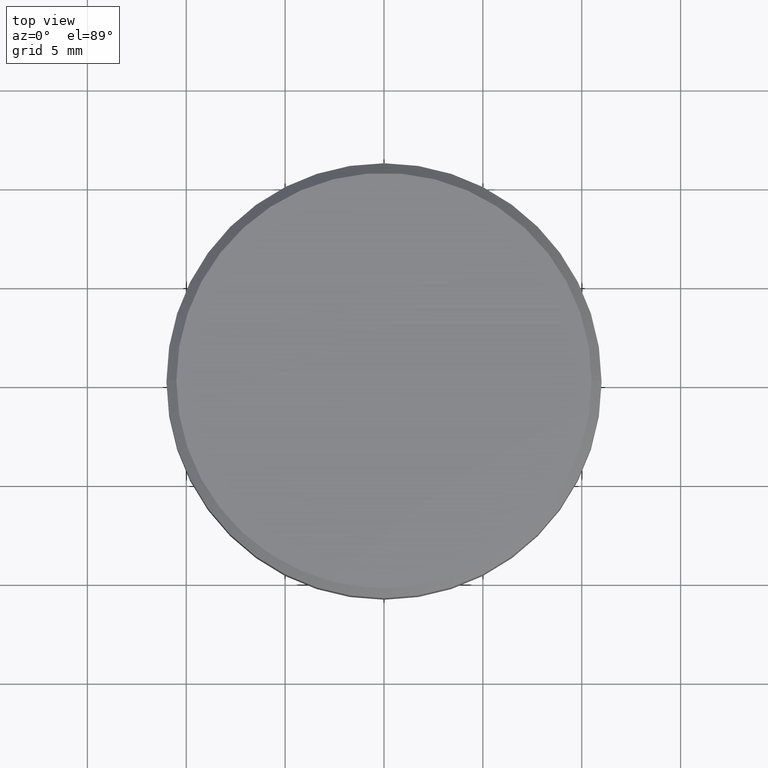
[diagram: clean part render]
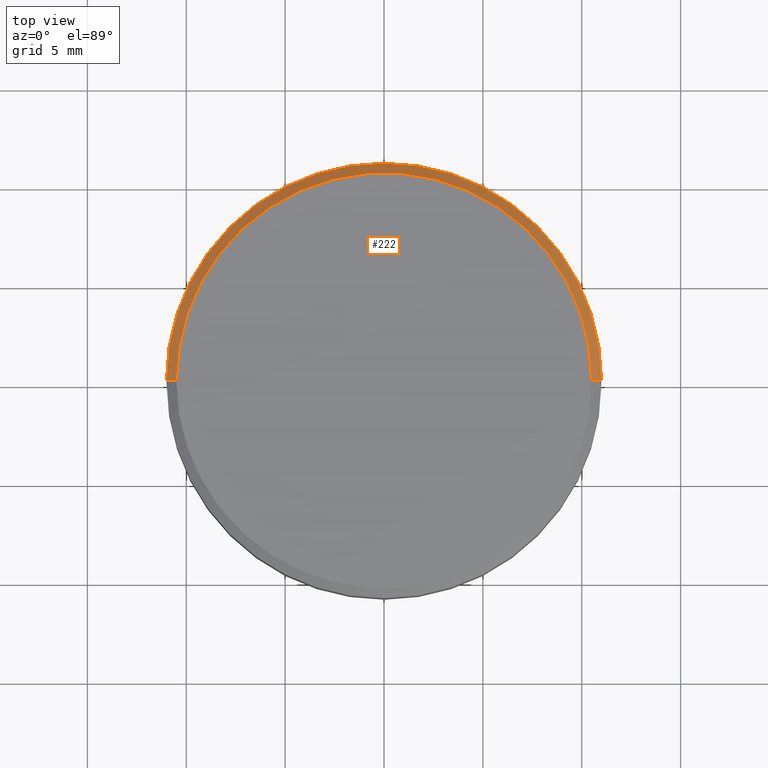
[diagram: same view with one face highlighted and labeled with its STEP entity id]
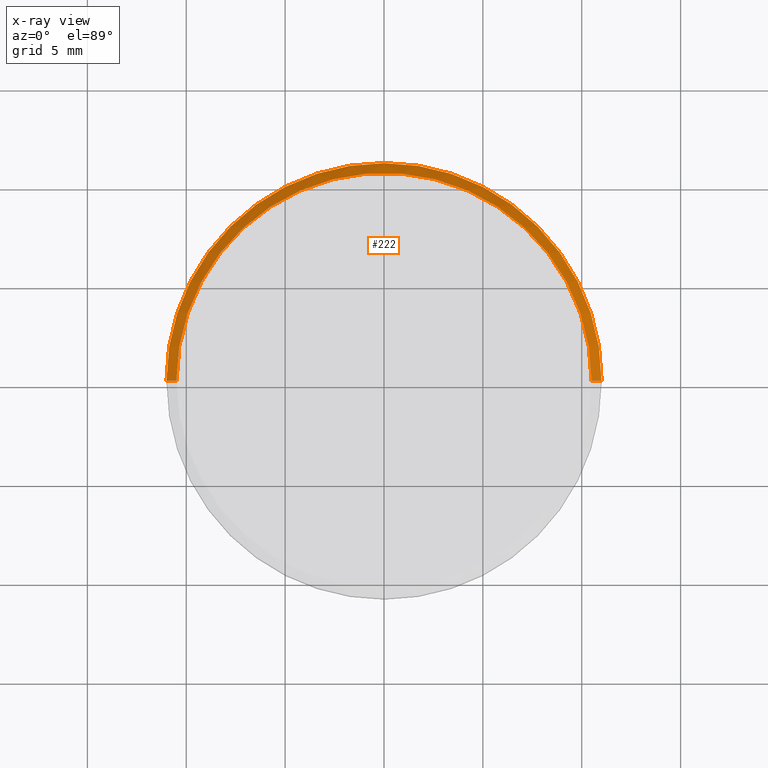
[diagram: x-ray of the same camera — body ghosted, the highlighted face saturated]
A machine part, top view. The second image highlights one B-rep face of the part: STEP entity #222.
The next image is the same camera in x-ray: the body ghosted, the highlighted face saturated — about 0% of this face is hidden behind the body in this view.
In plain terms, the highlighted conical surface has half-angle 45 deg.
Its self-contained STEP definition (entity closure, byte-faithful):
#10 = DIRECTION ( 'NONE',  ( -1.000000000000000000, 0.000000000000000000, 0.000000000000000000 ) ) ;
#39 = DIRECTION ( 'NONE',  ( 1.000000000000000000, 0.000000000000000000, 0.000000000000000000 ) ) ;
#44 = EDGE_CURVE ( 'NONE', #151, #334, #253, .T. ) ;
#88 = CIRCLE ( 'NONE', #310, 11.00000000000000000 ) ;
#89 = CARTESIAN_POINT ( 'NONE',  ( 0.000000000000000000, 0.000000000000000000, -0.5000000000000004441 ) ) ;
#101 = AXIS2_PLACEMENT_3D ( 'NONE', #119, #237, #10 ) ;
#117 = CONICAL_SURFACE ( 'NONE', #101, 10.49999999999999822, 0.7853981633974482790 ) ;
#119 = CARTESIAN_POINT ( 'NONE',  ( 0.000000000000000000, 0.000000000000000000, 0.000000000000000000 ) ) ;
#124 = CIRCLE ( 'NONE', #283, 10.49999999999999822 ) ;
#143 = EDGE_CURVE ( 'NONE', #334, #346, #88, .T. ) ;
#151 = VERTEX_POINT ( 'NONE', #211 ) ;
#162 = VECTOR ( 'NONE', #282, 1000.000000000000114 ) ;
#173 = CARTESIAN_POINT ( 'NONE',  ( -11.00000000000000000, 1.347111479062088405E-15, -0.5000000000000004441 ) ) ;
#176 = EDGE_CURVE ( 'NONE', #348, #151, #124, .T. ) ;
#184 = VECTOR ( 'NONE', #194, 1000.000000000000114 ) ;
#194 = DIRECTION ( 'NONE',  ( 0.7071067811865474617, 8.659560562354932858E-17, -0.7071067811865474617 ) ) ;
#196 = CARTESIAN_POINT ( 'NONE',  ( 10.49999999999999822, 1.285879139104720633E-15, 0.000000000000000000 ) ) ;
#207 = ORIENTED_EDGE ( 'NONE', *, *, #307, .T. ) ;
#211 = CARTESIAN_POINT ( 'NONE',  ( -10.49999999999999822, 0.000000000000000000, 0.000000000000000000 ) ) ;
#222 = ADVANCED_FACE ( 'NONE', ( #272 ), #117, .T. ) ;
#237 = DIRECTION ( 'NONE',  ( 0.000000000000000000, 0.000000000000000000, -1.000000000000000000 ) ) ;
#239 = DIRECTION ( 'NONE',  ( -0.000000000000000000, -0.000000000000000000, 1.000000000000000000 ) ) ;
#253 = LINE ( 'NONE', #353, #162 ) ;
#258 = CARTESIAN_POINT ( 'NONE',  ( 10.49999999999999822, 1.316495309083404420E-15, 0.000000000000000000 ) ) ;
#272 = FACE_OUTER_BOUND ( 'NONE', #314, .T. ) ;
#278 = DIRECTION ( 'NONE',  ( 1.000000000000000000, 0.000000000000000000, 0.000000000000000000 ) ) ;
#282 = DIRECTION ( 'NONE',  ( -0.7071067811865474617, 0.000000000000000000, -0.7071067811865474617 ) ) ;
#283 = AXIS2_PLACEMENT_3D ( 'NONE', #315, #239, #39 ) ;
#286 = CARTESIAN_POINT ( 'NONE',  ( 11.00000000000000000, 0.000000000000000000, -0.5000000000000004441 ) ) ;
#303 = ORIENTED_EDGE ( 'NONE', *, *, #143, .F. ) ;
#307 = EDGE_CURVE ( 'NONE', #348, #346, #399, .T. ) ;
#310 = AXIS2_PLACEMENT_3D ( 'NONE', #89, #379, #278 ) ;
#314 = EDGE_LOOP ( 'NONE', ( #341, #207, #303, #365 ) ) ;
#315 = CARTESIAN_POINT ( 'NONE',  ( 0.000000000000000000, 0.000000000000000000, 0.000000000000000000 ) ) ;
#334 = VERTEX_POINT ( 'NONE', #173 ) ;
#341 = ORIENTED_EDGE ( 'NONE', *, *, #176, .F. ) ;
#346 = VERTEX_POINT ( 'NONE', #286 ) ;
#348 = VERTEX_POINT ( 'NONE', #258 ) ;
#353 = CARTESIAN_POINT ( 'NONE',  ( -10.49999999999999822, 0.000000000000000000, 0.000000000000000000 ) ) ;
#365 = ORIENTED_EDGE ( 'NONE', *, *, #44, .F. ) ;
#379 = DIRECTION ( 'NONE',  ( 0.000000000000000000, 0.000000000000000000, -1.000000000000000000 ) ) ;
#399 = LINE ( 'NONE', #196, #184 ) ;